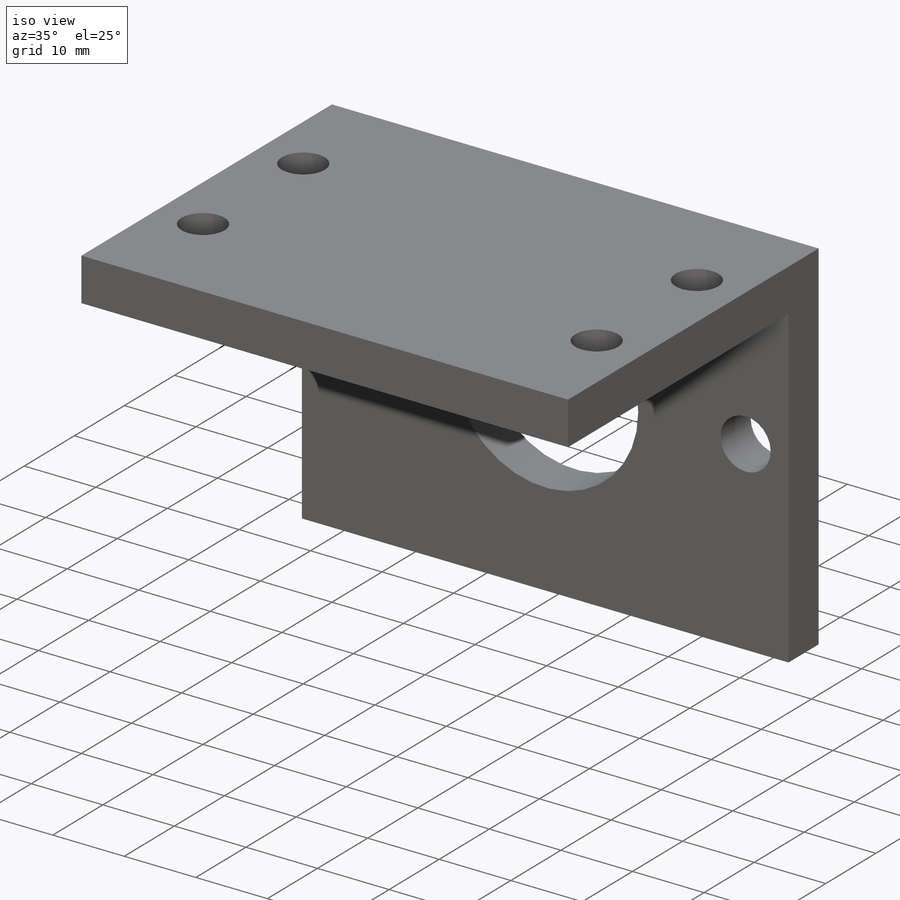
[diagram: iso view]
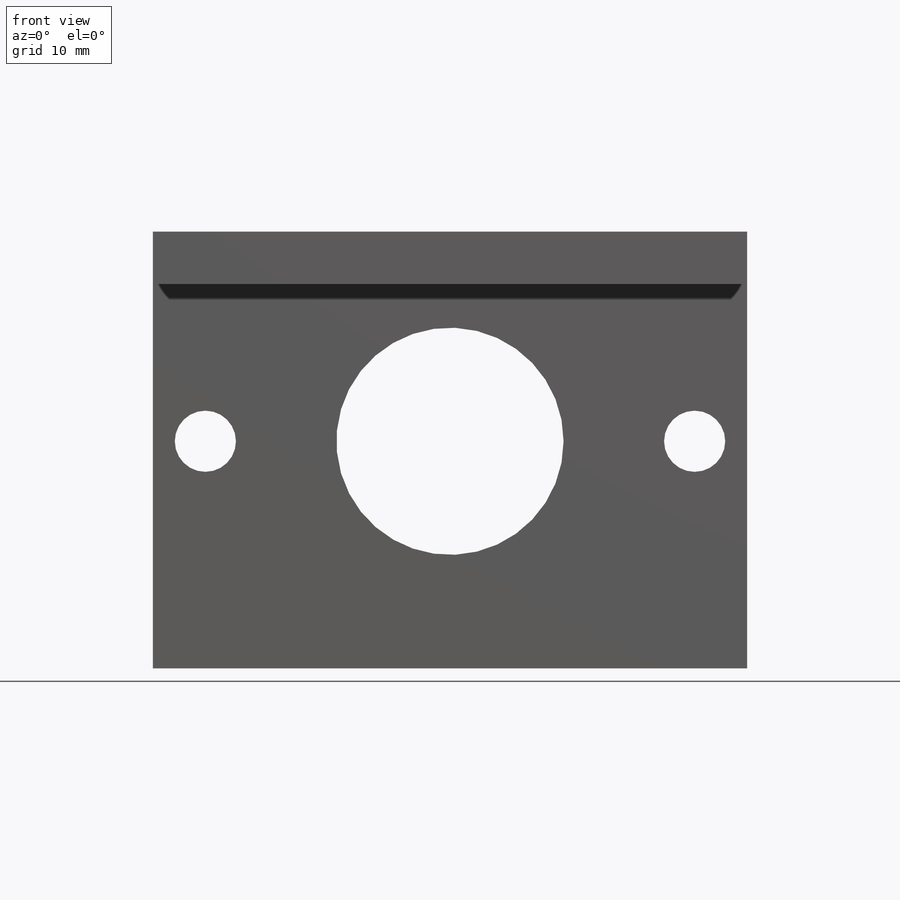
[diagram: front view]
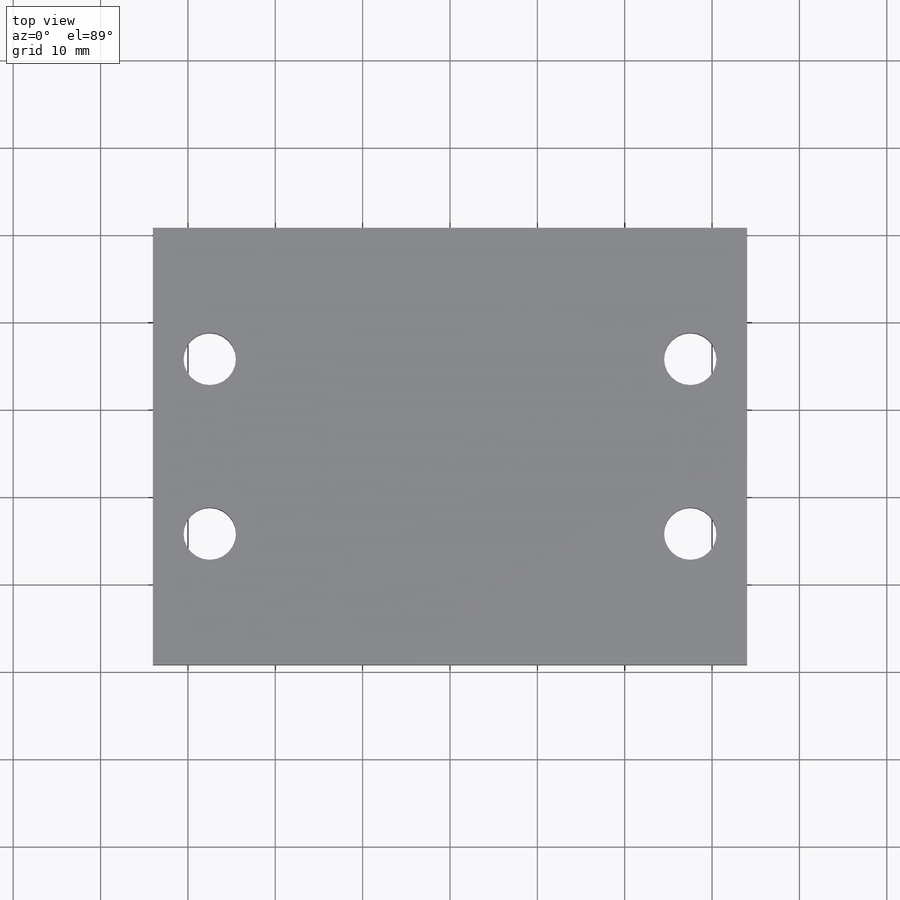
[diagram: top view]
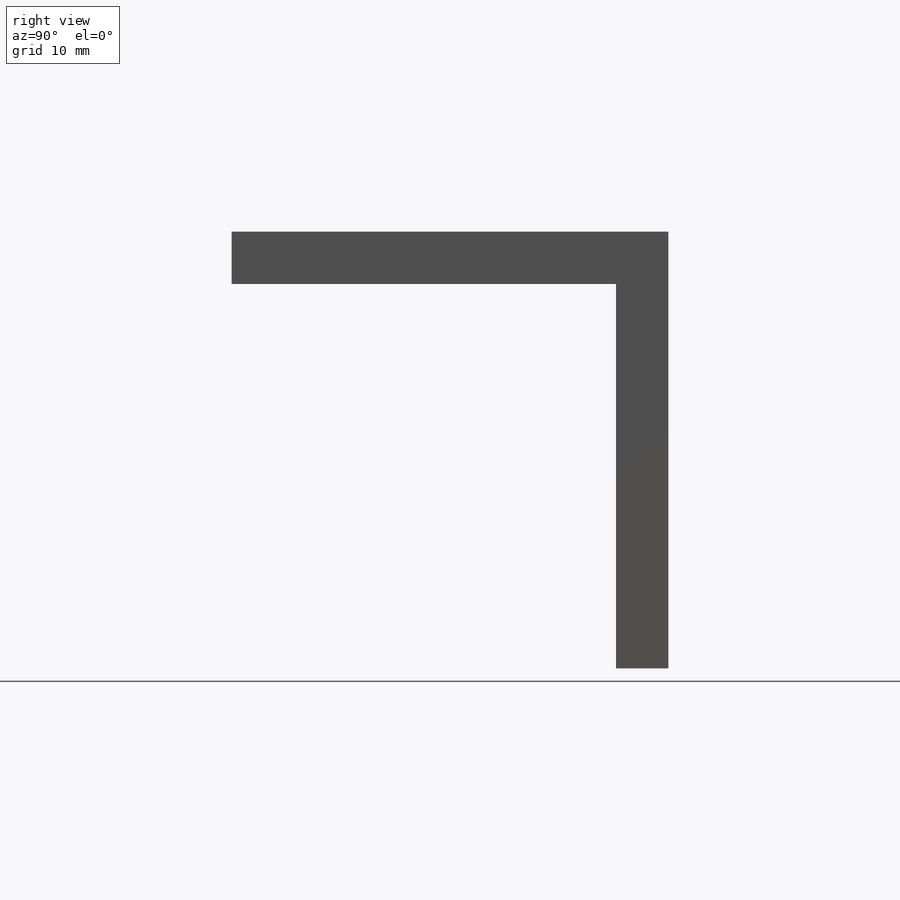
[diagram: right view]
SOLIDWORKS PART (.sldprt)
format: sldprt  version: not decoded by parser v0  size: 211,968 bytes
history: native  units: mm
features: plane x3, sketch x3, extrude x2, material x1, cut_extrude x1 (+10 scaffold rows collapsed)
feature tree (20):
  scaffold x10  (default folders/planes/origin — collapsed)
  material  "6061 合金"
  plane  "前视基准面"
  plane  "上视基准面"
  plane  "右视基准面"
  sketch  "草图1"  dims[c1.D6=6.0mm c1.D7=6.0mm c1.D8=6.0mm c1.D9=6.0mm c1.D1=~73.470337mm c1.D2=~127.574016mm c2.D1=~41.807388mm c2.D2=~8.299996mm c3.D1=68.0mm c3.D2=50.0mm c3.D3=~22.807819mm c3.D4=~60.920884mm c4.D3=55.0mm c4.D4=20.0mm c4.D5=15.0mm]
  extrude  "凸台-拉伸1"  Depth=6mm
  sketch  "草图3"  dims[c1.D1=~1.800337mm c1.D2=~78.075611mm c2.D1=68.0mm c2.D2=6.0mm]
  extrude  "凸台-拉伸2"  Depth=50mm
  sketch  "草图4"  dims[c1.D1=26.0mm c1.D2=~6.973463mm c1.D3=7.0mm c2.D1=~5.278676mm c2.D2=28.0mm c2.D4=28.0mm c3.D2=24.0mm c3.D4=28.0mm c3.D5=24.0mm]
  cut_extrude  "切除-拉伸1"  [1 undecoded]
decode coverage: 5 of 6 modeling features carry decoded parameters
note: ~ marks probable driven/reference dimensions
note: 1 parameter value undecoded
note: suppression state not decoded; provenance and decode notes live in map.json
